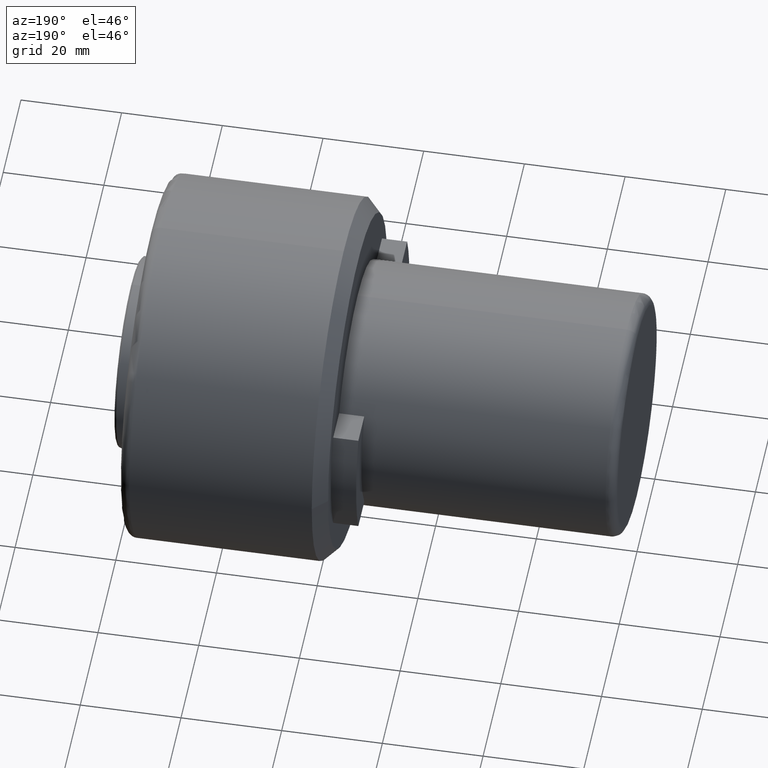
[diagram: clean part render]
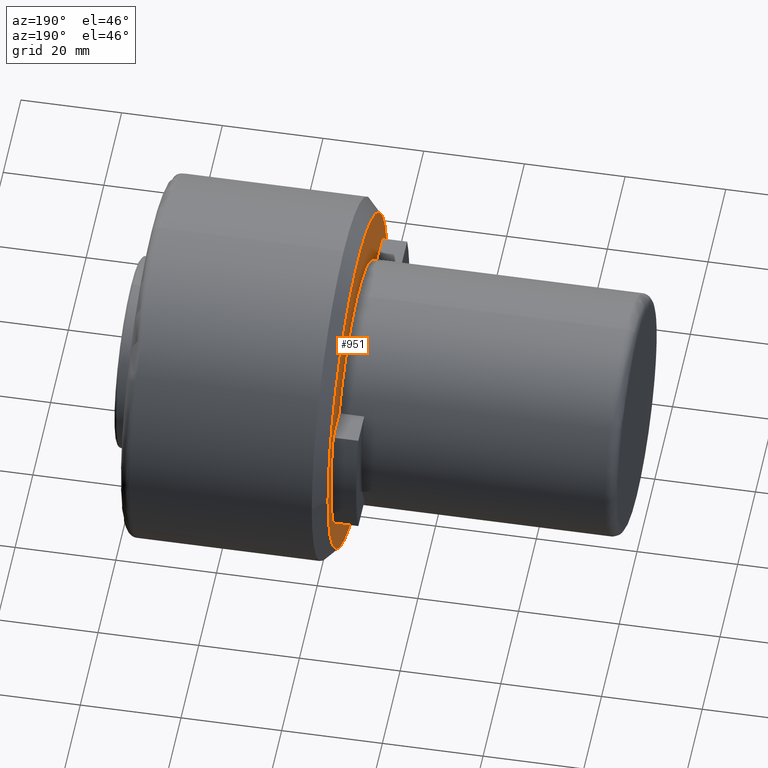
[diagram: same view with one face highlighted and labeled with its STEP entity id]
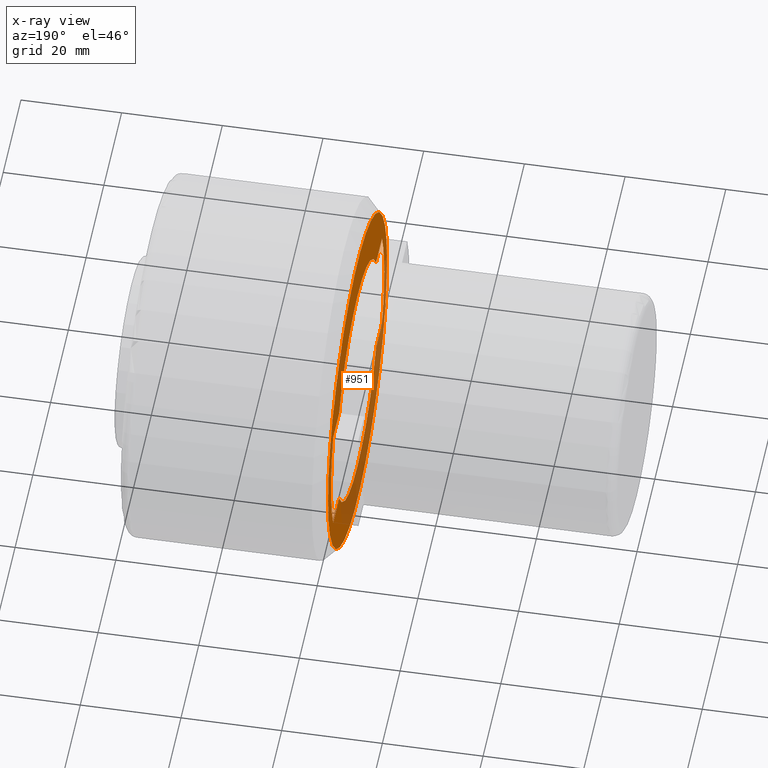
[diagram: x-ray of the same camera — body ghosted, the highlighted face saturated]
A machine part, auxiliary view. The second image highlights one B-rep face of the part: STEP entity #951.
The next image is the same camera in x-ray: the body ghosted, the highlighted face saturated — about 37% of this face is hidden behind the body in this view.
In plain terms, the highlighted planar face has unit normal (1, 0, 0).
Its self-contained STEP definition (entity closure, byte-faithful):
#2 = CARTESIAN_POINT ( 'NONE',  ( 55.50000000000000700, 0.0000000000000000000, 5.015442563508426400E-031 ) ) ;
#5 = ORIENTED_EDGE ( 'NONE', *, *, #422, .F. ) ;
#22 = LINE ( 'NONE', #634, #1125 ) ;
#40 = CIRCLE ( 'NONE', #696, 24.00000000000000000 ) ;
#44 = CIRCLE ( 'NONE', #489, 33.24999999999999300 ) ;
#64 = AXIS2_PLACEMENT_3D ( 'NONE', #1324, #851, #1052 ) ;
#95 = ORIENTED_EDGE ( 'NONE', *, *, #304, .F. ) ;
#96 = ORIENTED_EDGE ( 'NONE', *, *, #531, .F. ) ;
#100 = DIRECTION ( 'NONE',  ( 0.0000000000000000000, 0.0000000000000000000, -1.000000000000000000 ) ) ;
#104 = ORIENTED_EDGE ( 'NONE', *, *, #1097, .F. ) ;
#106 = CIRCLE ( 'NONE', #361, 33.24999999999999300 ) ;
#110 = AXIS2_PLACEMENT_3D ( 'NONE', #812, #160, #909 ) ;
#123 = CARTESIAN_POINT ( 'NONE',  ( 55.49999999999999300, 0.0000000000000000000, -7.523163844717393100E-031 ) ) ;
#147 = VERTEX_POINT ( 'NONE', #601 ) ;
#160 = DIRECTION ( 'NONE',  ( -1.000000000000000000, -1.156482317317871700E-016, -0.0000000000000000000 ) ) ;
#162 = DIRECTION ( 'NONE',  ( 2.312964634635743000E-016, -1.000000000000000000, 0.0000000000000000000 ) ) ;
#192 = CARTESIAN_POINT ( 'NONE',  ( 55.50000000000000000, -33.64900000000000100, -33.64900000000000100 ) ) ;
#211 = CIRCLE ( 'NONE', #1215, 30.00000000000000000 ) ;
#249 = CIRCLE ( 'NONE', #64, 24.00000000000000000 ) ;
#253 = DIRECTION ( 'NONE',  ( 0.0000000000000000000, -1.000000000000000000, -0.0000000000000000000 ) ) ;
#257 = VERTEX_POINT ( 'NONE', #1105 ) ;
#259 = DIRECTION ( 'NONE',  ( 1.000000000000000000, 9.637352644315590300E-017, -0.0000000000000000000 ) ) ;
#270 = CARTESIAN_POINT ( 'NONE',  ( 55.50000000000000700, 0.0000000000000000000, 5.015442563508426400E-031 ) ) ;
#274 = DIRECTION ( 'NONE',  ( 0.0000000000000000000, 0.0000000000000000000, 1.000000000000000000 ) ) ;
#285 = AXIS2_PLACEMENT_3D ( 'NONE', #746, #383, #162 ) ;
#304 = EDGE_CURVE ( 'NONE', #955, #1099, #1395, .T. ) ;
#305 = CARTESIAN_POINT ( 'NONE',  ( 55.49999999999999300, -33.24999999999999300, 4.240339542047711600E-015 ) ) ;
#327 = EDGE_LOOP ( 'NONE', ( #95, #785, #791, #1112, #1221, #1071, #104, #96, #592, #1262, #1326 ) ) ;
#361 = AXIS2_PLACEMENT_3D ( 'NONE', #1143, #259, #900 ) ;
#378 = CARTESIAN_POINT ( 'NONE',  ( 55.49999999999999300, -2.650271977186816100E-016, 0.0000000000000000000 ) ) ;
#383 = DIRECTION ( 'NONE',  ( -1.000000000000000000, -1.156482317317871700E-016, -0.0000000000000000000 ) ) ;
#422 = EDGE_CURVE ( 'NONE', #664, #806, #106, .T. ) ;
#437 = CARTESIAN_POINT ( 'NONE',  ( 55.50000000000000700, -30.00000000000000000, 0.0000000000000000000 ) ) ;
#439 = CARTESIAN_POINT ( 'NONE',  ( 55.50000000000000000, 20.78460969240347500, -11.99999999726865100 ) ) ;
#451 = DIRECTION ( 'NONE',  ( 0.0000000000000000000, -1.000000000000000000, -0.0000000000000000000 ) ) ;
#457 = CARTESIAN_POINT ( 'NONE',  ( 55.50000000000000700, 20.78460969332610700, 11.99999999567060100 ) ) ;
#468 = EDGE_CURVE ( 'NONE', #806, #664, #44, .T. ) ;
#489 = AXIS2_PLACEMENT_3D ( 'NONE', #378, #1163, #879 ) ;
#504 = DIRECTION ( 'NONE',  ( -1.000000000000000000, 0.0000000000000000000, -1.445602896647339200E-016 ) ) ;
#514 = CARTESIAN_POINT ( 'NONE',  ( 55.50000000000000700, -27.49545417167629000, -11.99999999570380800 ) ) ;
#524 = DIRECTION ( 'NONE',  ( 1.000000000000000000, 0.0000000000000000000, 0.0000000000000000000 ) ) ;
#531 = EDGE_CURVE ( 'NONE', #700, #1046, #249, .T. ) ;
#533 = FACE_BOUND ( 'NONE', #327, .T. ) ;
#550 = VERTEX_POINT ( 'NONE', #439 ) ;
#590 = CARTESIAN_POINT ( 'NONE',  ( 55.49999999999999300, 33.24999999999999300, 0.0000000000000000000 ) ) ;
#591 = EDGE_LOOP ( 'NONE', ( #5, #1220 ) ) ;
#592 = ORIENTED_EDGE ( 'NONE', *, *, #824, .F. ) ;
#601 = CARTESIAN_POINT ( 'NONE',  ( 55.50000000000000700, -27.49545416980128100, 11.99999999999999800 ) ) ;
#613 = CARTESIAN_POINT ( 'NONE',  ( 55.50000000000000700, -20.78460969578734200, -11.99999999140761600 ) ) ;
#618 = EDGE_CURVE ( 'NONE', #550, #739, #762, .T. ) ;
#629 = EDGE_CURVE ( 'NONE', #756, #550, #1302, .T. ) ;
#634 = CARTESIAN_POINT ( 'NONE',  ( 55.50000000000000000, -33.64900000000000100, 11.99999999999999600 ) ) ;
#661 = PLANE ( 'NONE',  #1000 ) ;
#664 = VERTEX_POINT ( 'NONE', #590 ) ;
#665 = DIRECTION ( 'NONE',  ( -0.0000000000000000000, 1.000000000000000000, 0.0000000000000000000 ) ) ;
#668 = CARTESIAN_POINT ( 'NONE',  ( 55.49999999999999300, 0.0000000000000000000, 24.00000000000000400 ) ) ;
#681 = VERTEX_POINT ( 'NONE', #437 ) ;
#696 = AXIS2_PLACEMENT_3D ( 'NONE', #123, #876, #969 ) ;
#700 = VERTEX_POINT ( 'NONE', #1098 ) ;
#716 = CARTESIAN_POINT ( 'NONE',  ( 55.50000000000000700, 2.939152317953647900E-015, -24.00000000000000000 ) ) ;
#739 = VERTEX_POINT ( 'NONE', #716 ) ;
#743 = EDGE_CURVE ( 'NONE', #1029, #257, #1224, .T. ) ;
#746 = CARTESIAN_POINT ( 'NONE',  ( 55.50000000000000000, -3.677383230559753800E-031, 0.0000000000000000000 ) ) ;
#748 = CARTESIAN_POINT ( 'NONE',  ( 55.50000000000000000, -33.64900000000000100, -11.99999999140761600 ) ) ;
#756 = VERTEX_POINT ( 'NONE', #1394 ) ;
#762 = CIRCLE ( 'NONE', #953, 24.00000000000000000 ) ;
#778 = VECTOR ( 'NONE', #451, 1000.000000000000000 ) ;
#785 = ORIENTED_EDGE ( 'NONE', *, *, #1286, .F. ) ;
#791 = ORIENTED_EDGE ( 'NONE', *, *, #618, .F. ) ;
#806 = VERTEX_POINT ( 'NONE', #305 ) ;
#812 = CARTESIAN_POINT ( 'NONE',  ( 55.50000000000000000, 3.677383230559753400E-031, 0.0000000000000000000 ) ) ;
#824 = EDGE_CURVE ( 'NONE', #147, #700, #22, .T. ) ;
#851 = DIRECTION ( 'NONE',  ( -1.000000000000000000, 0.0000000000000000000, -1.445602896647339200E-016 ) ) ;
#876 = DIRECTION ( 'NONE',  ( -1.000000000000000000, 0.0000000000000000000, -1.445602896647339200E-016 ) ) ;
#879 = DIRECTION ( 'NONE',  ( 0.0000000000000000000, 1.000000000000000000, 0.0000000000000000000 ) ) ;
#900 = DIRECTION ( 'NONE',  ( 0.0000000000000000000, 1.000000000000000000, 0.0000000000000000000 ) ) ;
#909 = DIRECTION ( 'NONE',  ( 2.312964634635743000E-016, -1.000000000000000000, 0.0000000000000000000 ) ) ;
#951 = ADVANCED_FACE ( 'NONE', ( #1051, #533 ), #661, .F. ) ;
#953 = AXIS2_PLACEMENT_3D ( 'NONE', #270, #504, #274 ) ;
#955 = VERTEX_POINT ( 'NONE', #613 ) ;
#969 = DIRECTION ( 'NONE',  ( 0.0000000000000000000, 0.0000000000000000000, 1.000000000000000000 ) ) ;
#992 = CIRCLE ( 'NONE', #110, 30.00000000000000000 ) ;
#994 = EDGE_CURVE ( 'NONE', #681, #147, #1287, .T. ) ;
#996 = VECTOR ( 'NONE', #253, 1000.000000000000000 ) ;
#1000 = AXIS2_PLACEMENT_3D ( 'NONE', #192, #524, #100 ) ;
#1029 = VERTEX_POINT ( 'NONE', #457 ) ;
#1035 = CARTESIAN_POINT ( 'NONE',  ( 55.50000000000000000, -33.64900000000000100, -11.99999999575899600 ) ) ;
#1046 = VERTEX_POINT ( 'NONE', #668 ) ;
#1051 = FACE_OUTER_BOUND ( 'NONE', #591, .T. ) ;
#1052 = DIRECTION ( 'NONE',  ( 0.0000000000000000000, 0.0000000000000000000, 1.000000000000000000 ) ) ;
#1056 = DIRECTION ( 'NONE',  ( -1.000000000000000000, 0.0000000000000000000, -1.445602896647339200E-016 ) ) ;
#1071 = ORIENTED_EDGE ( 'NONE', *, *, #743, .F. ) ;
#1097 = EDGE_CURVE ( 'NONE', #1046, #1029, #40, .T. ) ;
#1098 = CARTESIAN_POINT ( 'NONE',  ( 55.49999999999999300, -20.78460969007334200, 12.00000000130456000 ) ) ;
#1099 = VERTEX_POINT ( 'NONE', #514 ) ;
#1105 = CARTESIAN_POINT ( 'NONE',  ( 55.49999999999999300, 27.49545417074602900, 11.99999999783530000 ) ) ;
#1112 = ORIENTED_EDGE ( 'NONE', *, *, #629, .F. ) ;
#1125 = VECTOR ( 'NONE', #665, 1000.000000000000000 ) ;
#1136 = CIRCLE ( 'NONE', #1323, 24.00000000000000000 ) ;
#1143 = CARTESIAN_POINT ( 'NONE',  ( 55.49999999999999300, -2.650271977186816100E-016, 0.0000000000000000000 ) ) ;
#1151 = DIRECTION ( 'NONE',  ( -0.0000000000000000000, 1.000000000000000000, 0.0000000000000000000 ) ) ;
#1163 = DIRECTION ( 'NONE',  ( 1.000000000000000000, 9.637352644315590300E-017, -0.0000000000000000000 ) ) ;
#1173 = DIRECTION ( 'NONE',  ( 0.0000000000000000000, 0.0000000000000000000, 1.000000000000000000 ) ) ;
#1189 = VECTOR ( 'NONE', #1151, 1000.000000000000000 ) ;
#1215 = AXIS2_PLACEMENT_3D ( 'NONE', #1396, #1300, #1269 ) ;
#1220 = ORIENTED_EDGE ( 'NONE', *, *, #468, .F. ) ;
#1221 = ORIENTED_EDGE ( 'NONE', *, *, #1384, .F. ) ;
#1224 = LINE ( 'NONE', #1257, #1189 ) ;
#1255 = EDGE_CURVE ( 'NONE', #1099, #681, #211, .T. ) ;
#1257 = CARTESIAN_POINT ( 'NONE',  ( 55.50000000000000000, -33.64900000000000100, 11.99999999567059900 ) ) ;
#1262 = ORIENTED_EDGE ( 'NONE', *, *, #994, .F. ) ;
#1269 = DIRECTION ( 'NONE',  ( 2.312964634635743000E-016, -1.000000000000000000, 0.0000000000000000000 ) ) ;
#1286 = EDGE_CURVE ( 'NONE', #739, #955, #1136, .T. ) ;
#1287 = CIRCLE ( 'NONE', #285, 30.00000000000000000 ) ;
#1300 = DIRECTION ( 'NONE',  ( -1.000000000000000000, -1.156482317317871700E-016, -0.0000000000000000000 ) ) ;
#1302 = LINE ( 'NONE', #1035, #996 ) ;
#1323 = AXIS2_PLACEMENT_3D ( 'NONE', #2, #1056, #1173 ) ;
#1324 = CARTESIAN_POINT ( 'NONE',  ( 55.49999999999999300, 0.0000000000000000000, -7.523163844717393100E-031 ) ) ;
#1326 = ORIENTED_EDGE ( 'NONE', *, *, #1255, .F. ) ;
#1384 = EDGE_CURVE ( 'NONE', #257, #756, #992, .T. ) ;
#1394 = CARTESIAN_POINT ( 'NONE',  ( 55.49999999999999300, 27.49545417165220900, -11.99999999787949900 ) ) ;
#1395 = LINE ( 'NONE', #748, #778 ) ;
#1396 = CARTESIAN_POINT ( 'NONE',  ( 55.50000000000000000, -3.677383230559753800E-031, 0.0000000000000000000 ) ) ;